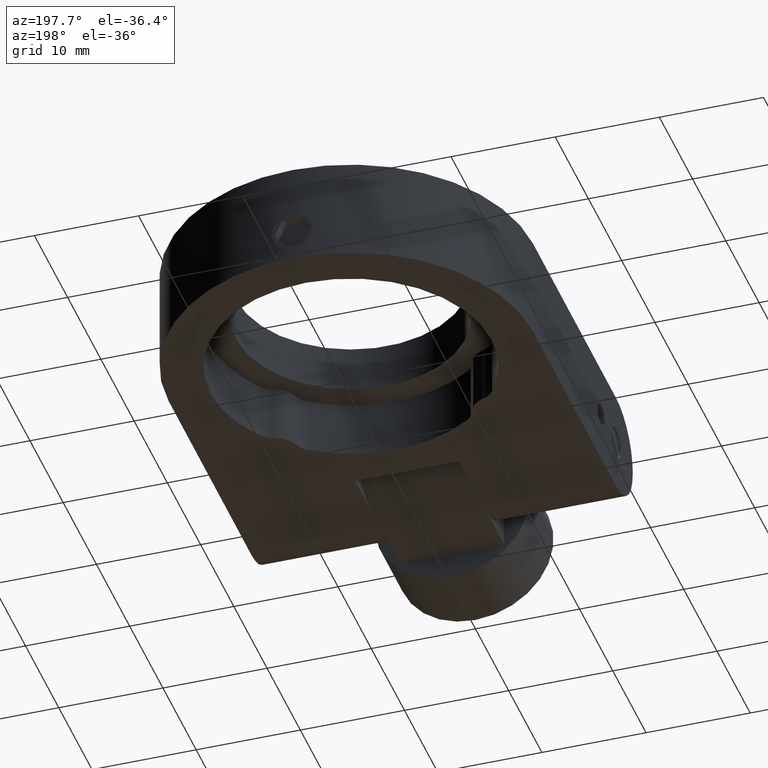
[diagram: clean part render]
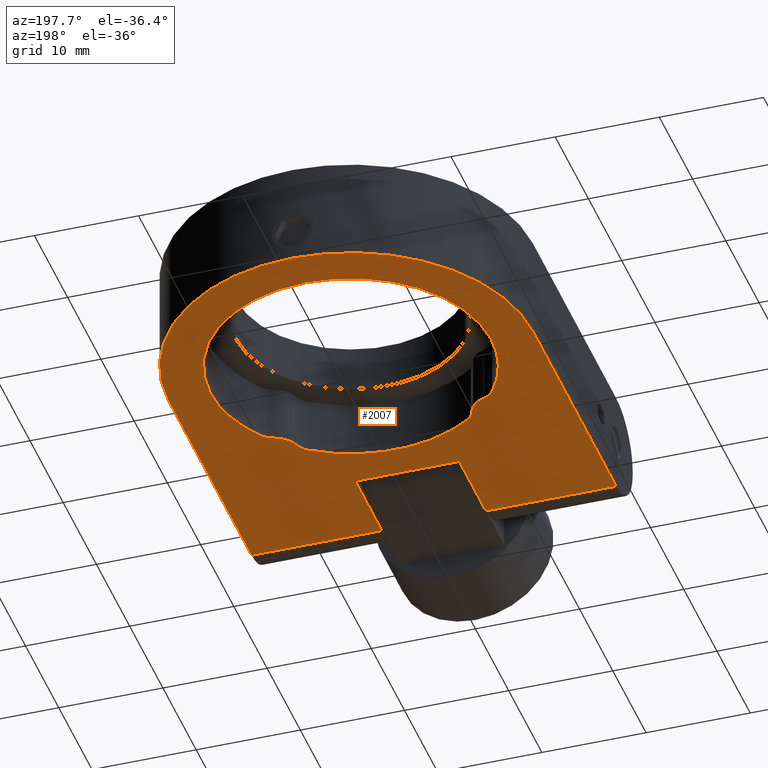
[diagram: same view with one face highlighted and labeled with its STEP entity id]
A machine part, auxiliary view. The second image highlights one B-rep face of the part: STEP entity #2007.
In plain terms, the highlighted planar face has unit normal (-0, -0, -1).
Its self-contained STEP definition (entity closure, byte-faithful):
#57 = CIRCLE ( 'NONE', #1390, 17.50000000000000000 ) ;
#68 = VERTEX_POINT ( 'NONE', #423 ) ;
#85 = AXIS2_PLACEMENT_3D ( 'NONE', #1072, #3146, #2798 ) ;
#130 = FACE_BOUND ( 'NONE', #3563, .T. ) ;
#169 = AXIS2_PLACEMENT_3D ( 'NONE', #1735, #857, #3833 ) ;
#235 = CARTESIAN_POINT ( 'NONE',  ( 17.49999999999999600, 12.50000000000010800, -4.999999999999982200 ) ) ;
#388 = AXIS2_PLACEMENT_3D ( 'NONE', #1304, #672, #3686 ) ;
#393 = DIRECTION ( 'NONE',  ( -1.000000000000000000, 0.0000000000000000000, 0.0000000000000000000 ) ) ;
#408 = VERTEX_POINT ( 'NONE', #235 ) ;
#423 = CARTESIAN_POINT ( 'NONE',  ( -5.000000000000000000, 20.50000000000010300, -4.999999999999980500 ) ) ;
#455 = CARTESIAN_POINT ( 'NONE',  ( 5.000000000000002700, 7.500000000000103900, -4.999999999999980500 ) ) ;
#467 = VECTOR ( 'NONE', #1615, 1000.000000000000000 ) ;
#471 = LINE ( 'NONE', #869, #2270 ) ;
#476 = AXIS2_PLACEMENT_3D ( 'NONE', #2210, #2793, #2220 ) ;
#486 = AXIS2_PLACEMENT_3D ( 'NONE', #2810, #1657, #2504 ) ;
#497 = VERTEX_POINT ( 'NONE', #2902 ) ;
#518 = LINE ( 'NONE', #2172, #1397 ) ;
#523 = CIRCLE ( 'NONE', #1346, 13.50000000000000000 ) ;
#532 = EDGE_CURVE ( 'NONE', #2204, #408, #1819, .T. ) ;
#597 = VERTEX_POINT ( 'NONE', #1764 ) ;
#651 = CIRCLE ( 'NONE', #476, 2.000000000000000000 ) ;
#669 = CIRCLE ( 'NONE', #486, 13.50000000000000000 ) ;
#672 = DIRECTION ( 'NONE',  ( 1.057139645054936500E-016, 1.718301073974566900E-032, 1.000000000000000000 ) ) ;
#709 = EDGE_CURVE ( 'NONE', #597, #1086, #523, .T. ) ;
#726 = PLANE ( 'NONE',  #2496 ) ;
#811 = EDGE_CURVE ( 'NONE', #68, #2983, #471, .T. ) ;
#852 = LINE ( 'NONE', #2363, #1162 ) ;
#857 = DIRECTION ( 'NONE',  ( 1.057139645054936500E-016, 1.718301073974566900E-032, 1.000000000000000000 ) ) ;
#861 = ORIENTED_EDGE ( 'NONE', *, *, #1776, .T. ) ;
#864 = ORIENTED_EDGE ( 'NONE', *, *, #1572, .T. ) ;
#869 = CARTESIAN_POINT ( 'NONE',  ( -4.999999999999997300, 7.500000000000103900, -4.999999999999980500 ) ) ;
#898 = CIRCLE ( 'NONE', #85, 2.500000000000000400 ) ;
#926 = CARTESIAN_POINT ( 'NONE',  ( -2.996752460788856200E-015, 37.50000000000009900, -4.999999999999980500 ) ) ;
#928 = EDGE_CURVE ( 'NONE', #2150, #3017, #2132, .T. ) ;
#949 = ORIENTED_EDGE ( 'NONE', *, *, #2524, .T. ) ;
#950 = DIRECTION ( 'NONE',  ( -1.000000000000000000, 1.150132687931107500E-016, 1.057139645054936500E-016 ) ) ;
#977 = LINE ( 'NONE', #455, #467 ) ;
#982 = CIRCLE ( 'NONE', #169, 2.000000000000000900 ) ;
#1018 = CARTESIAN_POINT ( 'NONE',  ( 8.408207200546307500, 27.42754876433242500, -4.999999999999982200 ) ) ;
#1027 = EDGE_CURVE ( 'NONE', #3718, #1694, #982, .T. ) ;
#1072 = CARTESIAN_POINT ( 'NONE',  ( 10.79999999999999700, 26.70000000000010600, -4.999999999999982200 ) ) ;
#1081 = EDGE_CURVE ( 'NONE', #2302, #2279, #1859, .T. ) ;
#1086 = VERTEX_POINT ( 'NONE', #3244 ) ;
#1139 = CARTESIAN_POINT ( 'NONE',  ( -17.50000000000000400, 37.50000000000009900, -4.999999999999978700 ) ) ;
#1148 = CIRCLE ( 'NONE', #1922, 2.000000000000000000 ) ;
#1151 = ORIENTED_EDGE ( 'NONE', *, *, #1198, .T. ) ;
#1162 = VECTOR ( 'NONE', #950, 1000.000000000000000 ) ;
#1198 = EDGE_CURVE ( 'NONE', #408, #497, #518, .T. ) ;
#1304 = CARTESIAN_POINT ( 'NONE',  ( 6.494772960983357100, 28.00958777579827700, -4.999999999999980500 ) ) ;
#1320 = DIRECTION ( 'NONE',  ( -1.057139645054936500E-016, -1.718301073974566900E-032, -1.000000000000000000 ) ) ;
#1346 = AXIS2_PLACEMENT_3D ( 'NONE', #3092, #1320, #2438 ) ;
#1390 = AXIS2_PLACEMENT_3D ( 'NONE', #1555, #1872, #1848 ) ;
#1397 = VECTOR ( 'NONE', #3340, 1000.000000000000000 ) ;
#1555 = CARTESIAN_POINT ( 'NONE',  ( -2.996752460788856200E-015, 37.50000000000009900, -4.999999999999980500 ) ) ;
#1572 = EDGE_CURVE ( 'NONE', #2983, #2302, #852, .T. ) ;
#1592 = ORIENTED_EDGE ( 'NONE', *, *, #2376, .T. ) ;
#1605 = ORIENTED_EDGE ( 'NONE', *, *, #811, .T. ) ;
#1615 = DIRECTION ( 'NONE',  ( -1.625424873631782800E-016, 1.000000000000000000, 1.042420171678820400E-047 ) ) ;
#1619 = FACE_OUTER_BOUND ( 'NONE', #1641, .T. ) ;
#1641 = EDGE_LOOP ( 'NONE', ( #2832, #1151, #861, #2856, #1605, #864, #3567, #3508 ) ) ;
#1656 = LINE ( 'NONE', #2493, #2892 ) ;
#1657 = DIRECTION ( 'NONE',  ( -1.057139645054936500E-016, -1.718301073974566900E-032, -1.000000000000000000 ) ) ;
#1664 = CARTESIAN_POINT ( 'NONE',  ( -13.50000000000000500, 37.50000000000009900, -4.999999999999978700 ) ) ;
#1694 = VERTEX_POINT ( 'NONE', #2169 ) ;
#1727 = EDGE_CURVE ( 'NONE', #2150, #3394, #651, .T. ) ;
#1735 = CARTESIAN_POINT ( 'NONE',  ( -6.494772960983358900, 28.00958777579827700, -4.999999999999980500 ) ) ;
#1764 = CARTESIAN_POINT ( 'NONE',  ( 13.49999999999999600, 37.50000000000010700, -4.999999999999982200 ) ) ;
#1774 = CARTESIAN_POINT ( 'NONE',  ( 7.624298693328288600, 26.35908130202404800, -4.999999999999980500 ) ) ;
#1775 = ORIENTED_EDGE ( 'NONE', *, *, #709, .F. ) ;
#1776 = EDGE_CURVE ( 'NONE', #497, #2532, #977, .T. ) ;
#1780 = ORIENTED_EDGE ( 'NONE', *, *, #2573, .F. ) ;
#1797 = CARTESIAN_POINT ( 'NONE',  ( -17.50000000000000400, 37.50000000000009900, -4.999999999999978700 ) ) ;
#1810 = CARTESIAN_POINT ( 'NONE',  ( -17.50000000000000400, 12.50000000000011200, -4.999999999999978700 ) ) ;
#1819 = LINE ( 'NONE', #2925, #1866 ) ;
#1820 = EDGE_CURVE ( 'NONE', #3394, #3718, #3052, .T. ) ;
#1848 = DIRECTION ( 'NONE',  ( -1.000000000000000000, 0.0000000000000000000, 9.912705577010326800E-017 ) ) ;
#1859 = LINE ( 'NONE', #1139, #2717 ) ;
#1866 = VECTOR ( 'NONE', #2948, 1000.000000000000000 ) ;
#1872 = DIRECTION ( 'NONE',  ( -1.057139645054936500E-016, -1.718301073974566900E-032, -1.000000000000000000 ) ) ;
#1885 = CARTESIAN_POINT ( 'NONE',  ( -10.80000000000000200, 26.70000000000009900, -4.999999999999978700 ) ) ;
#1919 = CARTESIAN_POINT ( 'NONE',  ( 9.490412224201826100, 31.00522703901674500, -4.999999999999982200 ) ) ;
#1922 = AXIS2_PLACEMENT_3D ( 'NONE', #1919, #2190, #2478 ) ;
#1987 = AXIS2_PLACEMENT_3D ( 'NONE', #3072, #2731, #2154 ) ;
#2007 = ADVANCED_FACE ( 'NONE', ( #130, #1619 ), #726, .T. ) ;
#2132 = CIRCLE ( 'NONE', #3837, 13.50000000000000000 ) ;
#2150 = VERTEX_POINT ( 'NONE', #3385 ) ;
#2154 = DIRECTION ( 'NONE',  ( -1.000000000000000000, 0.0000000000000000000, 1.284980352575412700E-016 ) ) ;
#2169 = CARTESIAN_POINT ( 'NONE',  ( -7.624298693328290400, 26.35908130202404500, -4.999999999999980500 ) ) ;
#2172 = CARTESIAN_POINT ( 'NONE',  ( 5.000000000000001800, 12.50000000000010500, -4.999999999999980500 ) ) ;
#2176 = DIRECTION ( 'NONE',  ( -1.000000000000000000, -1.625424873631782800E-016, 1.057139645054936500E-016 ) ) ;
#2190 = DIRECTION ( 'NONE',  ( 1.057139645054936500E-016, 1.718301073974566900E-032, 1.000000000000000000 ) ) ;
#2204 = VERTEX_POINT ( 'NONE', #3773 ) ;
#2210 = CARTESIAN_POINT ( 'NONE',  ( -9.490412224201829600, 31.00522703901674500, -4.999999999999978700 ) ) ;
#2220 = DIRECTION ( 'NONE',  ( -1.000000000000000000, 0.0000000000000000000, 0.0000000000000000000 ) ) ;
#2270 = VECTOR ( 'NONE', #2632, 1000.000000000000000 ) ;
#2279 = VERTEX_POINT ( 'NONE', #1797 ) ;
#2302 = VERTEX_POINT ( 'NONE', #1810 ) ;
#2338 = EDGE_CURVE ( 'NONE', #3211, #1694, #2720, .T. ) ;
#2355 = EDGE_CURVE ( 'NONE', #2279, #2204, #57, .T. ) ;
#2363 = CARTESIAN_POINT ( 'NONE',  ( -17.50000000000000400, 12.50000000000010500, -4.999999999999978700 ) ) ;
#2376 = EDGE_CURVE ( 'NONE', #3211, #2516, #3744, .T. ) ;
#2438 = DIRECTION ( 'NONE',  ( -1.000000000000000000, 0.0000000000000000000, 1.284980352575412700E-016 ) ) ;
#2468 = CARTESIAN_POINT ( 'NONE',  ( -2.996752460788856200E-015, 37.50000000000009900, -4.999999999999980500 ) ) ;
#2478 = DIRECTION ( 'NONE',  ( -1.000000000000000000, -1.734723475976807100E-015, 0.0000000000000000000 ) ) ;
#2493 = CARTESIAN_POINT ( 'NONE',  ( 5.000000000000000000, 20.50000000000010300, -4.999999999999980500 ) ) ;
#2496 = AXIS2_PLACEMENT_3D ( 'NONE', #2468, #3730, #2176 ) ;
#2504 = DIRECTION ( 'NONE',  ( -1.000000000000000000, 0.0000000000000000000, 1.284980352575412700E-016 ) ) ;
#2516 = VERTEX_POINT ( 'NONE', #1018 ) ;
#2524 = EDGE_CURVE ( 'NONE', #2516, #3047, #898, .T. ) ;
#2532 = VERTEX_POINT ( 'NONE', #3753 ) ;
#2558 = ORIENTED_EDGE ( 'NONE', *, *, #2338, .F. ) ;
#2573 = EDGE_CURVE ( 'NONE', #3017, #597, #669, .T. ) ;
#2610 = ORIENTED_EDGE ( 'NONE', *, *, #1727, .T. ) ;
#2632 = DIRECTION ( 'NONE',  ( 1.625424873631782800E-016, -1.000000000000000000, -1.042420171678820400E-047 ) ) ;
#2671 = ORIENTED_EDGE ( 'NONE', *, *, #1820, .T. ) ;
#2717 = VECTOR ( 'NONE', #3209, 1000.000000000000000 ) ;
#2720 = CIRCLE ( 'NONE', #1987, 13.50000000000000000 ) ;
#2731 = DIRECTION ( 'NONE',  ( -1.057139645054936500E-016, -1.718301073974566900E-032, -1.000000000000000000 ) ) ;
#2793 = DIRECTION ( 'NONE',  ( 1.057139645054936500E-016, 1.718301073974566900E-032, 1.000000000000000000 ) ) ;
#2798 = DIRECTION ( 'NONE',  ( -1.000000000000000000, 0.0000000000000000000, 0.0000000000000000000 ) ) ;
#2810 = CARTESIAN_POINT ( 'NONE',  ( -2.996752460788856200E-015, 37.50000000000009900, -4.999999999999980500 ) ) ;
#2813 = CARTESIAN_POINT ( 'NONE',  ( 10.07245123566768000, 29.09179279945379200, -4.999999999999982200 ) ) ;
#2832 = ORIENTED_EDGE ( 'NONE', *, *, #532, .T. ) ;
#2856 = ORIENTED_EDGE ( 'NONE', *, *, #3764, .T. ) ;
#2892 = VECTOR ( 'NONE', #3101, 1000.000000000000000 ) ;
#2902 = CARTESIAN_POINT ( 'NONE',  ( 5.000000000000001800, 12.50000000000010500, -4.999999999999980500 ) ) ;
#2925 = CARTESIAN_POINT ( 'NONE',  ( 17.49999999999999600, 37.50000000000009900, -4.999999999999982200 ) ) ;
#2948 = DIRECTION ( 'NONE',  ( 4.689425563139113600E-017, -1.000000000000000000, 1.222563306441724000E-032 ) ) ;
#2983 = VERTEX_POINT ( 'NONE', #3459 ) ;
#2986 = DIRECTION ( 'NONE',  ( -1.057139645054936500E-016, -1.718301073974566900E-032, -1.000000000000000000 ) ) ;
#3014 = DIRECTION ( 'NONE',  ( -1.057139645054936500E-016, -1.718301073974566900E-032, -1.000000000000000000 ) ) ;
#3017 = VERTEX_POINT ( 'NONE', #1664 ) ;
#3047 = VERTEX_POINT ( 'NONE', #2813 ) ;
#3052 = CIRCLE ( 'NONE', #3755, 2.500000000000000400 ) ;
#3072 = CARTESIAN_POINT ( 'NONE',  ( -2.996752460788856200E-015, 37.50000000000009900, -4.999999999999980500 ) ) ;
#3073 = CARTESIAN_POINT ( 'NONE',  ( -8.408207200546311100, 27.42754876433242100, -4.999999999999978700 ) ) ;
#3092 = CARTESIAN_POINT ( 'NONE',  ( -2.996752460788856200E-015, 37.50000000000009900, -4.999999999999980500 ) ) ;
#3101 = DIRECTION ( 'NONE',  ( -1.000000000000000000, -1.625424873631782800E-016, 1.057139645054936500E-016 ) ) ;
#3146 = DIRECTION ( 'NONE',  ( -1.057139645054936500E-016, -1.718301073974566900E-032, -1.000000000000000000 ) ) ;
#3209 = DIRECTION ( 'NONE',  ( -4.689425563139112300E-017, 1.000000000000000000, -1.222563306441724200E-032 ) ) ;
#3211 = VERTEX_POINT ( 'NONE', #1774 ) ;
#3229 = ORIENTED_EDGE ( 'NONE', *, *, #928, .F. ) ;
#3244 = CARTESIAN_POINT ( 'NONE',  ( 11.14091869797605500, 29.87570130667181400, -4.999999999999982200 ) ) ;
#3293 = DIRECTION ( 'NONE',  ( -1.000000000000000000, 0.0000000000000000000, 1.284980352575412700E-016 ) ) ;
#3340 = DIRECTION ( 'NONE',  ( -1.000000000000000000, -1.625424873631782800E-016, 1.057139645054936500E-016 ) ) ;
#3385 = CARTESIAN_POINT ( 'NONE',  ( -11.14091869797605800, 29.87570130667181100, -4.999999999999978700 ) ) ;
#3394 = VERTEX_POINT ( 'NONE', #3672 ) ;
#3416 = ORIENTED_EDGE ( 'NONE', *, *, #1027, .T. ) ;
#3459 = CARTESIAN_POINT ( 'NONE',  ( -4.999999999999998200, 12.50000000000010500, -4.999999999999980500 ) ) ;
#3508 = ORIENTED_EDGE ( 'NONE', *, *, #2355, .T. ) ;
#3563 = EDGE_LOOP ( 'NONE', ( #2558, #1592, #949, #3653, #1775, #1780, #3229, #2610, #2671, #3416 ) ) ;
#3567 = ORIENTED_EDGE ( 'NONE', *, *, #1081, .T. ) ;
#3624 = EDGE_CURVE ( 'NONE', #3047, #1086, #1148, .T. ) ;
#3653 = ORIENTED_EDGE ( 'NONE', *, *, #3624, .T. ) ;
#3672 = CARTESIAN_POINT ( 'NONE',  ( -10.07245123566768500, 29.09179279945379200, -4.999999999999978700 ) ) ;
#3686 = DIRECTION ( 'NONE',  ( -1.000000000000000000, -1.734723475976807100E-015, 0.0000000000000000000 ) ) ;
#3718 = VERTEX_POINT ( 'NONE', #3073 ) ;
#3730 = DIRECTION ( 'NONE',  ( -1.057139645054936500E-016, -1.718301073974566900E-032, -1.000000000000000000 ) ) ;
#3744 = CIRCLE ( 'NONE', #388, 2.000000000000000000 ) ;
#3753 = CARTESIAN_POINT ( 'NONE',  ( 5.000000000000000000, 20.50000000000010300, -4.999999999999980500 ) ) ;
#3755 = AXIS2_PLACEMENT_3D ( 'NONE', #1885, #3014, #393 ) ;
#3764 = EDGE_CURVE ( 'NONE', #2532, #68, #1656, .T. ) ;
#3773 = CARTESIAN_POINT ( 'NONE',  ( 17.49999999999999600, 37.50000000000009900, -4.999999999999982200 ) ) ;
#3833 = DIRECTION ( 'NONE',  ( -1.000000000000000000, 0.0000000000000000000, 0.0000000000000000000 ) ) ;
#3837 = AXIS2_PLACEMENT_3D ( 'NONE', #926, #2986, #3293 ) ;